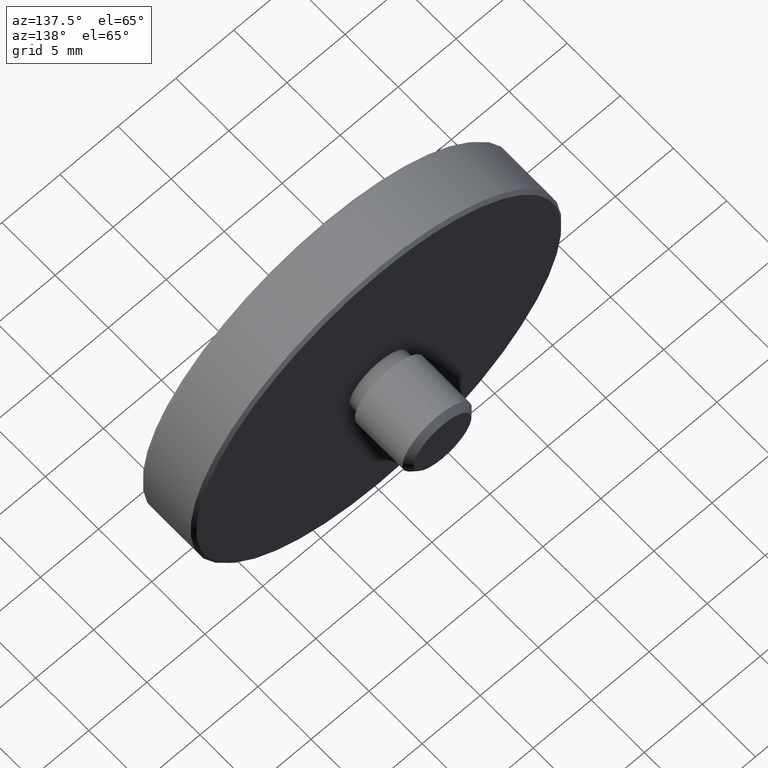
[diagram: clean part render]
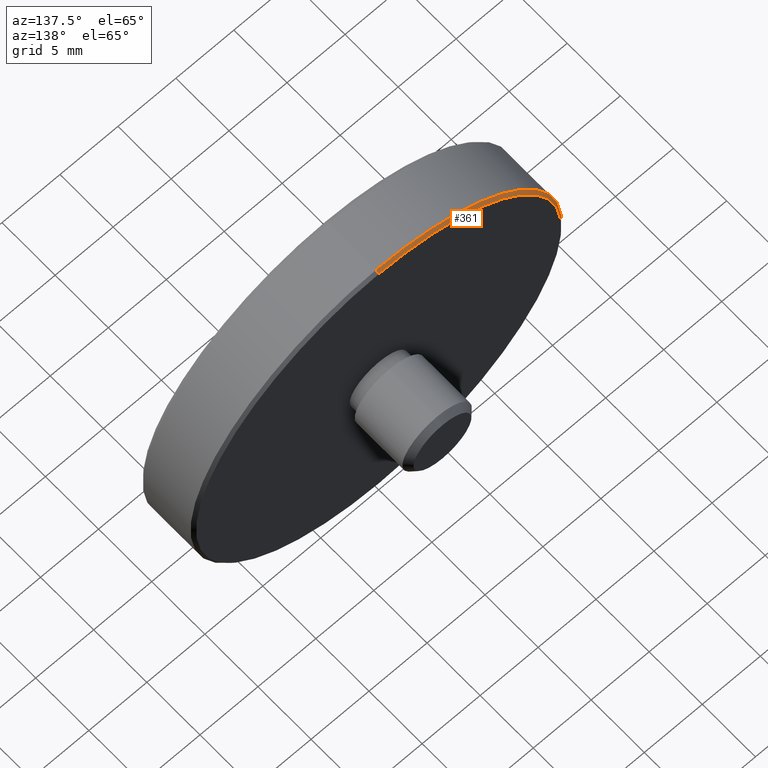
[diagram: same view with one face highlighted and labeled with its STEP entity id]
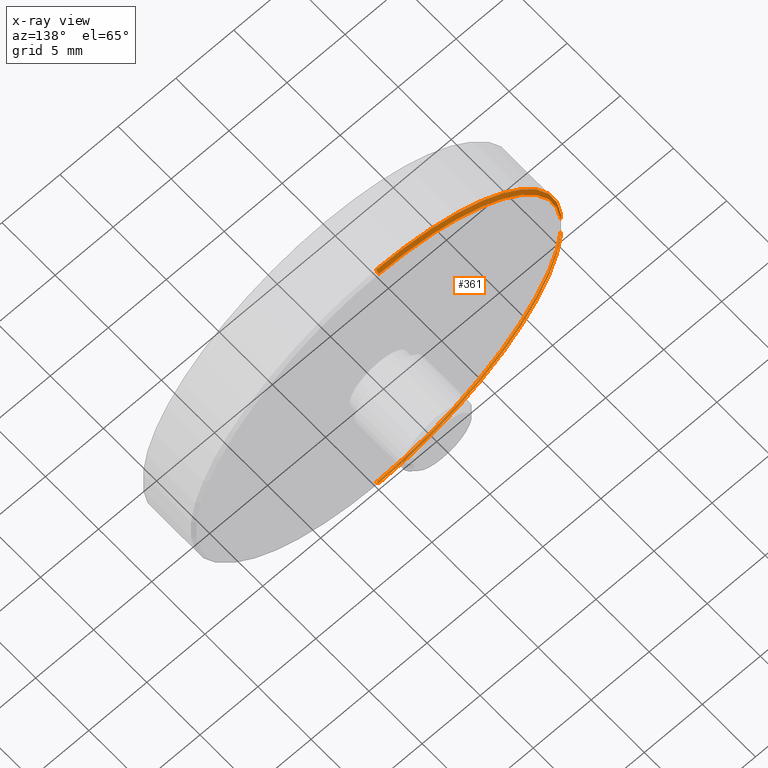
[diagram: x-ray of the same camera — body ghosted, the highlighted face saturated]
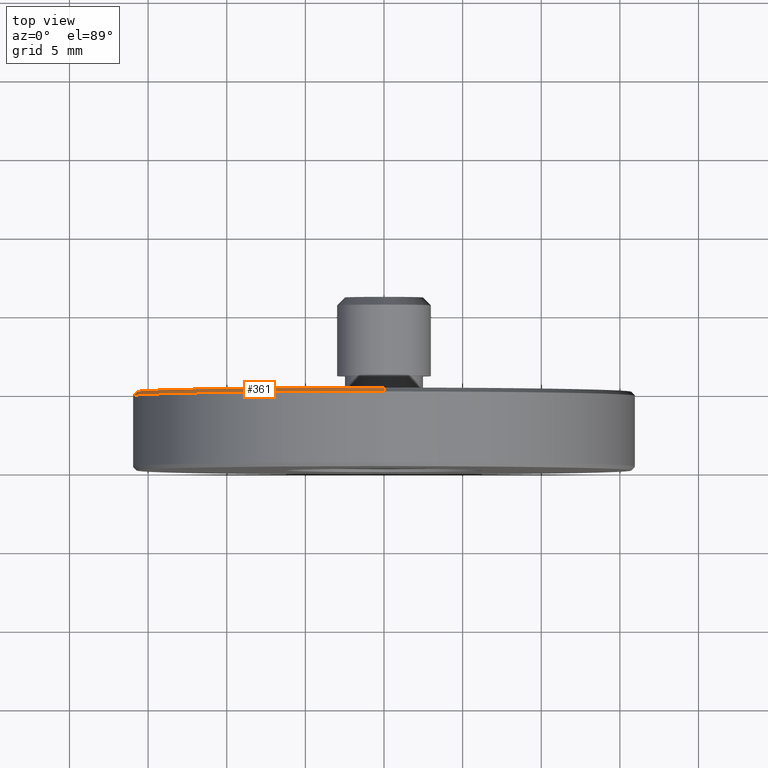
[diagram: same view with one face highlighted and labeled with its STEP entity id]
A machine part, auxiliary view. The second image highlights one B-rep face of the part: STEP entity #361.
The next image is the same camera in x-ray: the body ghosted, the highlighted face saturated — about 13% of this face is hidden behind the body in this view.
A second angle (top view) of the same face is appended — the face is thin or edge-on in the first view.
In plain terms, the highlighted conical surface has half-angle 45 deg.
Its self-contained STEP definition (entity closure, byte-faithful):
#4 = AXIS2_PLACEMENT_3D ( 'NONE', #822, #27, #553 ) ;
#9 = CIRCLE ( 'NONE', #799, 16.00000000000000000 ) ;
#11 = EDGE_CURVE ( 'NONE', #259, #512, #9, .T. ) ;
#19 = CARTESIAN_POINT ( 'NONE',  ( 1.959434878635765131E-15, 4.750000000000000000, 16.00000000000000000 ) ) ;
#23 = LINE ( 'NONE', #96, #332 ) ;
#27 = DIRECTION ( 'NONE',  ( 0.000000000000000000, -1.000000000000000000, 0.000000000000000000 ) ) ;
#29 = EDGE_LOOP ( 'NONE', ( #326, #690, #44, #37 ) ) ;
#37 = ORIENTED_EDGE ( 'NONE', *, *, #11, .F. ) ;
#41 = AXIS2_PLACEMENT_3D ( 'NONE', #801, #290, #217 ) ;
#44 = ORIENTED_EDGE ( 'NONE', *, *, #778, .T. ) ;
#91 = DIRECTION ( 'NONE',  ( 0.000000000000000000, -1.000000000000000000, 0.000000000000000000 ) ) ;
#96 = CARTESIAN_POINT ( 'NONE',  ( 1.928818708657080556E-15, 5.000000000000000000, 15.74999999999999289 ) ) ;
#130 = CARTESIAN_POINT ( 'NONE',  ( 0.000000000000000000, 4.750000000000000000, -16.00000000000000000 ) ) ;
#141 = DIRECTION ( 'NONE',  ( 0.000000000000000000, -0.7071067811865378028, -0.7071067811865573427 ) ) ;
#147 = CARTESIAN_POINT ( 'NONE',  ( 0.000000000000000000, 5.000000000000000000, -15.74999999999999289 ) ) ;
#178 = CARTESIAN_POINT ( 'NONE',  ( 0.000000000000000000, 5.000000000000000000, -15.74999999999999289 ) ) ;
#205 = LINE ( 'NONE', #147, #788 ) ;
#217 = DIRECTION ( 'NONE',  ( 0.000000000000000000, 0.000000000000000000, 1.000000000000000000 ) ) ;
#232 = VERTEX_POINT ( 'NONE', #178 ) ;
#233 = CIRCLE ( 'NONE', #41, 15.74999999999999289 ) ;
#259 = VERTEX_POINT ( 'NONE', #19 ) ;
#268 = CARTESIAN_POINT ( 'NONE',  ( 1.944126793646422844E-15, 5.000000000000000000, 15.74999999999999289 ) ) ;
#276 = DIRECTION ( 'NONE',  ( 0.000000000000000000, 0.000000000000000000, 1.000000000000000000 ) ) ;
#277 = EDGE_CURVE ( 'NONE', #385, #259, #23, .T. ) ;
#290 = DIRECTION ( 'NONE',  ( 0.000000000000000000, 1.000000000000000000, 0.000000000000000000 ) ) ;
#326 = ORIENTED_EDGE ( 'NONE', *, *, #277, .F. ) ;
#332 = VECTOR ( 'NONE', #344, 1000.000000000000000 ) ;
#344 = DIRECTION ( 'NONE',  ( 8.659560562355054885E-17, -0.7071067811865378028, 0.7071067811865573427 ) ) ;
#361 = ADVANCED_FACE ( 'NONE', ( #417 ), #527, .T. ) ;
#385 = VERTEX_POINT ( 'NONE', #268 ) ;
#407 = CARTESIAN_POINT ( 'NONE',  ( 0.000000000000000000, 4.750000000000000000, 0.000000000000000000 ) ) ;
#417 = FACE_OUTER_BOUND ( 'NONE', #29, .T. ) ;
#512 = VERTEX_POINT ( 'NONE', #130 ) ;
#527 = CONICAL_SURFACE ( 'NONE', #4, 15.74999999999999289, 0.7853981633974621568 ) ;
#553 = DIRECTION ( 'NONE',  ( 0.000000000000000000, 0.000000000000000000, -1.000000000000000000 ) ) ;
#677 = EDGE_CURVE ( 'NONE', #232, #385, #233, .T. ) ;
#690 = ORIENTED_EDGE ( 'NONE', *, *, #677, .F. ) ;
#778 = EDGE_CURVE ( 'NONE', #232, #512, #205, .T. ) ;
#788 = VECTOR ( 'NONE', #141, 1000.000000000000000 ) ;
#799 = AXIS2_PLACEMENT_3D ( 'NONE', #407, #91, #276 ) ;
#801 = CARTESIAN_POINT ( 'NONE',  ( 0.000000000000000000, 5.000000000000000000, 0.000000000000000000 ) ) ;
#822 = CARTESIAN_POINT ( 'NONE',  ( 0.000000000000000000, 5.000000000000000000, 0.000000000000000000 ) ) ;